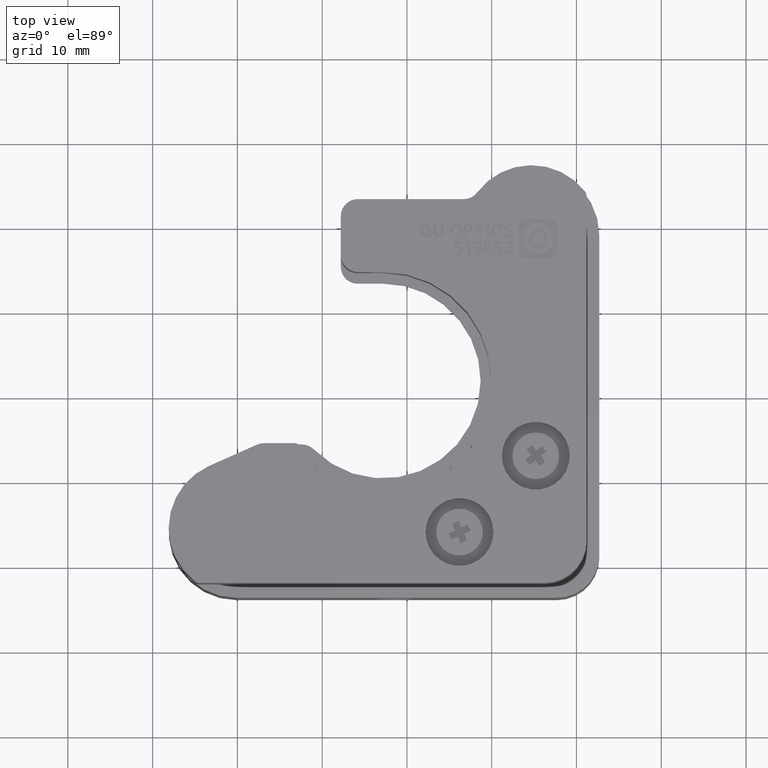
[diagram: clean part render]
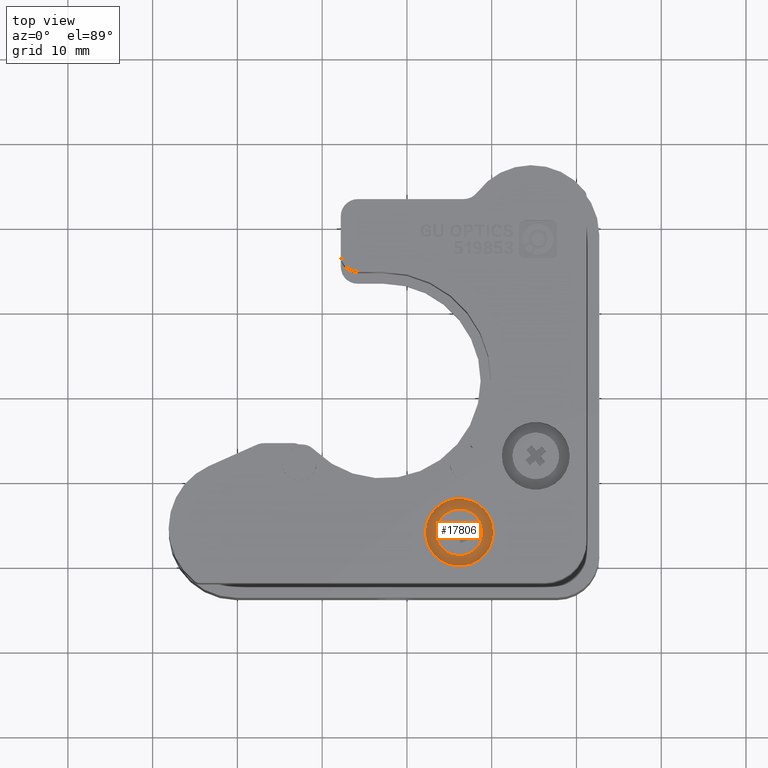
[diagram: same view with one face highlighted and labeled with its STEP entity id]
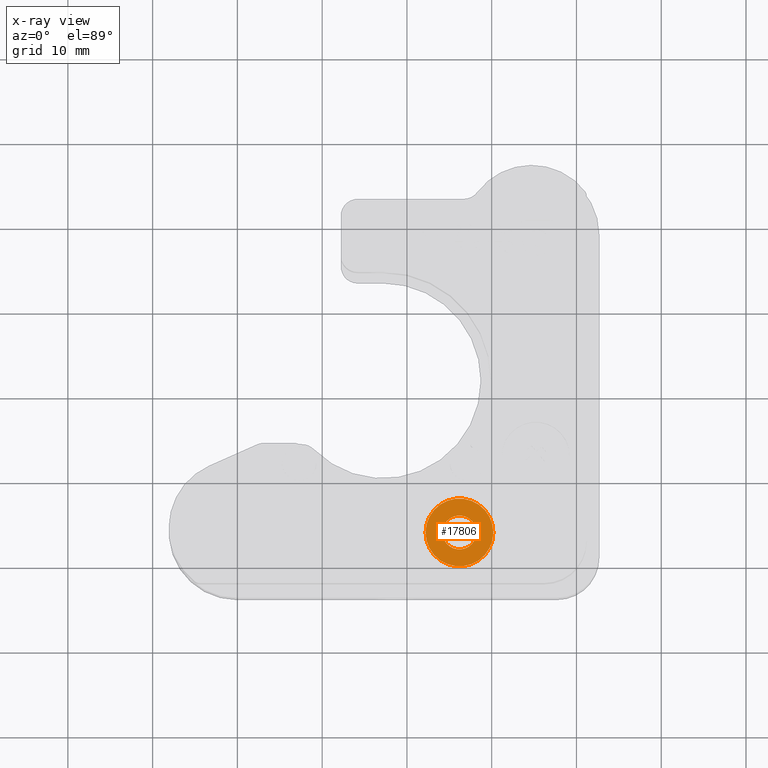
[diagram: x-ray of the same camera — body ghosted, the highlighted face saturated]
A machine part, top view. The second image highlights one B-rep face of the part: STEP entity #17806.
The next image is the same camera in x-ray: the body ghosted, the highlighted face saturated — about 0% of this face is hidden behind the body in this view.
In plain terms, the highlighted planar face has unit normal (0, 0, 1).
Its self-contained STEP definition (entity closure, byte-faithful):
#629 = CARTESIAN_POINT ( 'NONE',  ( 26.19393658312055400, 23.41778669584324400, 49.56366457255799000 ) ) ;
#1365 = EDGE_LOOP ( 'NONE', ( #10873, #10063 ) ) ;
#2439 = EDGE_LOOP ( 'NONE', ( #33976, #16361 ) ) ;
#3281 = DIRECTION ( 'NONE',  ( 1.000000000000000000, 0.0000000000000000000, 0.0000000000000000000 ) ) ;
#7335 = CARTESIAN_POINT ( 'NONE',  ( 26.19393658312055400, 23.41778669584324400, 49.56366457255799000 ) ) ;
#7536 = VERTEX_POINT ( 'NONE', #26065 ) ;
#8803 = AXIS2_PLACEMENT_3D ( 'NONE', #629, #19021, #3281 ) ;
#9001 = FACE_OUTER_BOUND ( 'NONE', #2439, .T. ) ;
#9922 = EDGE_CURVE ( 'NONE', #16304, #26389, #29617, .T. ) ;
#10004 = DIRECTION ( 'NONE',  ( 1.000000000000000000, 0.0000000000000000000, 0.0000000000000000000 ) ) ;
#10063 = ORIENTED_EDGE ( 'NONE', *, *, #30985, .F. ) ;
#10441 = VERTEX_POINT ( 'NONE', #21189 ) ;
#10701 = AXIS2_PLACEMENT_3D ( 'NONE', #14473, #32762, #17096 ) ;
#10873 = ORIENTED_EDGE ( 'NONE', *, *, #9922, .F. ) ;
#12975 = CARTESIAN_POINT ( 'NONE',  ( 26.19393658312055400, 23.41778669584324400, 49.56366457255799000 ) ) ;
#14453 = CARTESIAN_POINT ( 'NONE',  ( 26.19393658312055400, 23.41778669584324400, 49.56366457255799000 ) ) ;
#14473 = CARTESIAN_POINT ( 'NONE',  ( 26.19393658312055400, 23.41778669584324400, 49.56366457255799000 ) ) ;
#15618 = DIRECTION ( 'NONE',  ( 1.000000000000000000, 0.0000000000000000000, 0.0000000000000000000 ) ) ;
#16304 = VERTEX_POINT ( 'NONE', #24986 ) ;
#16361 = ORIENTED_EDGE ( 'NONE', *, *, #30138, .T. ) ;
#16726 = CIRCLE ( 'NONE', #27064, 4.000000000000000000 ) ;
#16996 = PLANE ( 'NONE',  #10701 ) ;
#17082 = DIRECTION ( 'NONE',  ( 1.000000000000000000, 0.0000000000000000000, 0.0000000000000000000 ) ) ;
#17096 = DIRECTION ( 'NONE',  ( 1.000000000000000000, 0.0000000000000000000, -0.0000000000000000000 ) ) ;
#17806 = ADVANCED_FACE ( 'NONE', ( #29883, #9001 ), #16996, .T. ) ;
#18509 = AXIS2_PLACEMENT_3D ( 'NONE', #7335, #25675, #10004 ) ;
#19021 = DIRECTION ( 'NONE',  ( 0.0000000000000000000, 0.0000000000000000000, 1.000000000000000000 ) ) ;
#21189 = CARTESIAN_POINT ( 'NONE',  ( 30.19393658312055400, 23.41778669584324400, 49.56366457255799000 ) ) ;
#24986 = CARTESIAN_POINT ( 'NONE',  ( 28.19393658312055000, 23.41778669584324400, 49.56366457255799000 ) ) ;
#25675 = DIRECTION ( 'NONE',  ( 0.0000000000000000000, 0.0000000000000000000, 1.000000000000000000 ) ) ;
#26065 = CARTESIAN_POINT ( 'NONE',  ( 22.19393658312055400, 23.41778669584324400, 49.56366457255799000 ) ) ;
#26389 = VERTEX_POINT ( 'NONE', #32101 ) ;
#27064 = AXIS2_PLACEMENT_3D ( 'NONE', #12975, #31218, #15618 ) ;
#29617 = CIRCLE ( 'NONE', #8803, 1.999999999999998200 ) ;
#29883 = FACE_BOUND ( 'NONE', #1365, .T. ) ;
#30138 = EDGE_CURVE ( 'NONE', #7536, #10441, #32690, .T. ) ;
#30658 = CIRCLE ( 'NONE', #18509, 1.999999999999998200 ) ;
#30814 = AXIS2_PLACEMENT_3D ( 'NONE', #14453, #32737, #17082 ) ;
#30985 = EDGE_CURVE ( 'NONE', #26389, #16304, #30658, .T. ) ;
#31218 = DIRECTION ( 'NONE',  ( 0.0000000000000000000, 0.0000000000000000000, 1.000000000000000000 ) ) ;
#31590 = EDGE_CURVE ( 'NONE', #10441, #7536, #16726, .T. ) ;
#32101 = CARTESIAN_POINT ( 'NONE',  ( 24.19393658312055400, 23.41778669584324400, 49.56366457255799000 ) ) ;
#32690 = CIRCLE ( 'NONE', #30814, 4.000000000000000000 ) ;
#32737 = DIRECTION ( 'NONE',  ( 0.0000000000000000000, 0.0000000000000000000, 1.000000000000000000 ) ) ;
#32762 = DIRECTION ( 'NONE',  ( 0.0000000000000000000, 0.0000000000000000000, 1.000000000000000000 ) ) ;
#33976 = ORIENTED_EDGE ( 'NONE', *, *, #31590, .T. ) ;